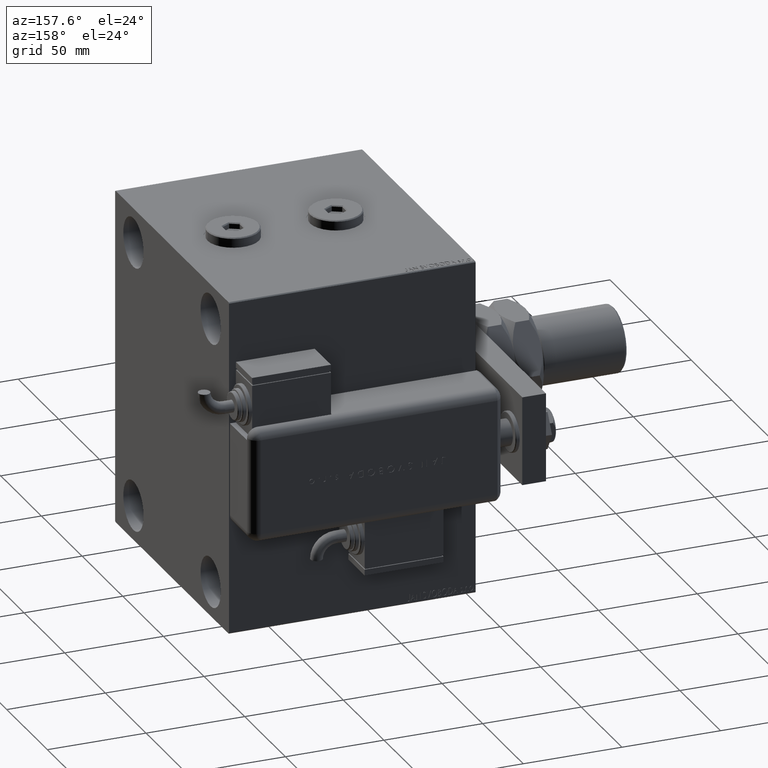
[diagram: clean part render]
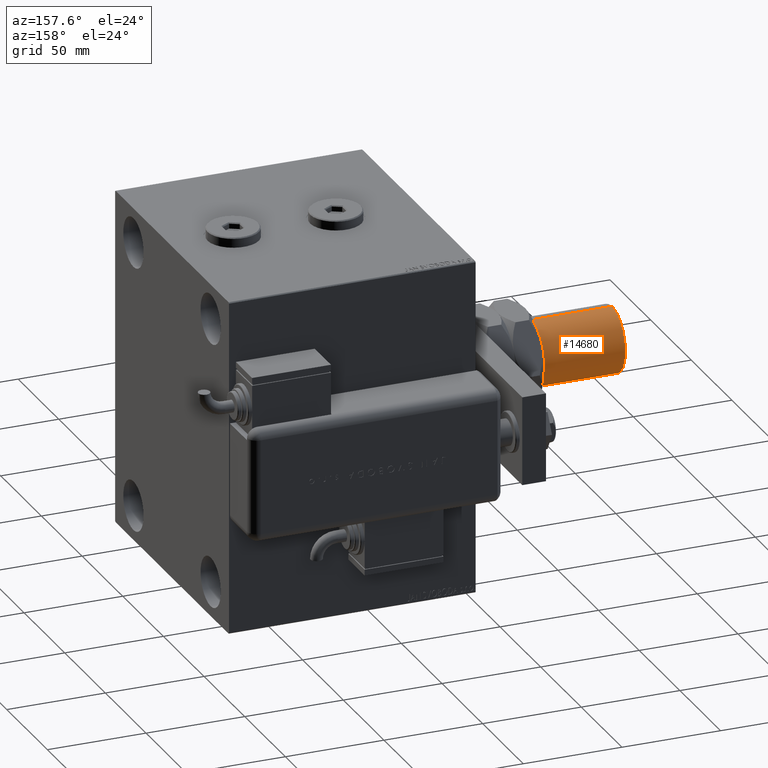
[diagram: same view with one face highlighted and labeled with its STEP entity id]
A machine part, auxiliary view. The second image highlights one B-rep face of the part: STEP entity #14680.
In plain terms, the highlighted cylindrical surface (edge-blend (fillet) strip) has radius 16.5 mm, axis along (1, -0, -0).
Its self-contained STEP definition (entity closure, byte-faithful):
#6633 = ORIENTED_EDGE ( 'NONE', *, *, #23607, .T. ) ;
#7394 = CYLINDRICAL_SURFACE ( 'NONE', #38372, 16.50000000000000000 ) ;
#7930 = VECTOR ( 'NONE', #14169, 1000.000000000000000 ) ;
#9851 = DIRECTION ( 'NONE',  ( 0.000000000000000000, 0.000000000000000000, -1.000000000000000000 ) ) ;
#11825 = EDGE_CURVE ( 'NONE', #12600, #36990, #38212, .T. ) ;
#12460 = DIRECTION ( 'NONE',  ( -0.000000000000000000, -0.000000000000000000, 1.000000000000000000 ) ) ;
#12600 = VERTEX_POINT ( 'NONE', #42498 ) ;
#14001 = VERTEX_POINT ( 'NONE', #27128 ) ;
#14169 = DIRECTION ( 'NONE',  ( -0.000000000000000000, -0.000000000000000000, -1.000000000000000000 ) ) ;
#14680 = ADVANCED_FACE ( 'NONE', ( #35848 ), #7394, .T. ) ;
#17945 = ORIENTED_EDGE ( 'NONE', *, *, #28043, .F. ) ;
#18286 = CIRCLE ( 'NONE', #28388, 16.50000000000000000 ) ;
#23306 = VERTEX_POINT ( 'NONE', #51174 ) ;
#23607 = EDGE_CURVE ( 'NONE', #36990, #14001, #56801, .T. ) ;
#27128 = CARTESIAN_POINT ( 'NONE',  ( -16.50000000000000000, 0.000000000000000000, 30.99999999999998579 ) ) ;
#28043 = EDGE_CURVE ( 'NONE', #23306, #14001, #57319, .T. ) ;
#28388 = AXIS2_PLACEMENT_3D ( 'NONE', #53205, #9851, #29128 ) ;
#29128 = DIRECTION ( 'NONE',  ( 1.000000000000000000, 0.000000000000000000, 0.000000000000000000 ) ) ;
#31745 = DIRECTION ( 'NONE',  ( 1.000000000000000000, 0.000000000000000000, 0.000000000000000000 ) ) ;
#32310 = CARTESIAN_POINT ( 'NONE',  ( -16.50000000000000000, 0.000000000000000000, 73.00000000000000000 ) ) ;
#33135 = CARTESIAN_POINT ( 'NONE',  ( 16.50000000000000000, 2.020667218593133100E-15, 73.00000000000000000 ) ) ;
#35220 = DIRECTION ( 'NONE',  ( -1.000000000000000000, 0.000000000000000000, 0.000000000000000000 ) ) ;
#35848 = FACE_OUTER_BOUND ( 'NONE', #44678, .T. ) ;
#36158 = CARTESIAN_POINT ( 'NONE',  ( 0.000000000000000000, 0.000000000000000000, 73.00000000000000000 ) ) ;
#36990 = VERTEX_POINT ( 'NONE', #44911 ) ;
#37438 = CARTESIAN_POINT ( 'NONE',  ( 0.000000000000000000, 0.000000000000000000, 30.99999999999998579 ) ) ;
#38006 = DIRECTION ( 'NONE',  ( -0.000000000000000000, -0.000000000000000000, -1.000000000000000000 ) ) ;
#38212 = LINE ( 'NONE', #33135, #7930 ) ;
#38372 = AXIS2_PLACEMENT_3D ( 'NONE', #36158, #59277, #35220 ) ;
#42498 = CARTESIAN_POINT ( 'NONE',  ( 16.50000000000000000, 2.020667218593133100E-15, 72.00000000000000000 ) ) ;
#43561 = EDGE_CURVE ( 'NONE', #23306, #12600, #18286, .T. ) ;
#44678 = EDGE_LOOP ( 'NONE', ( #51820, #48049, #6633, #17945 ) ) ;
#44911 = CARTESIAN_POINT ( 'NONE',  ( 16.50000000000000000, 2.020667218593133100E-15, 30.99999999999998579 ) ) ;
#48049 = ORIENTED_EDGE ( 'NONE', *, *, #11825, .T. ) ;
#51174 = CARTESIAN_POINT ( 'NONE',  ( -16.50000000000000000, 0.000000000000000000, 72.00000000000000000 ) ) ;
#51820 = ORIENTED_EDGE ( 'NONE', *, *, #43561, .T. ) ;
#53205 = CARTESIAN_POINT ( 'NONE',  ( 0.000000000000000000, 0.000000000000000000, 72.00000000000000000 ) ) ;
#56801 = CIRCLE ( 'NONE', #57797, 16.50000000000000000 ) ;
#57319 = LINE ( 'NONE', #32310, #62232 ) ;
#57797 = AXIS2_PLACEMENT_3D ( 'NONE', #37438, #12460, #31745 ) ;
#59277 = DIRECTION ( 'NONE',  ( -0.000000000000000000, -0.000000000000000000, -1.000000000000000000 ) ) ;
#62232 = VECTOR ( 'NONE', #38006, 1000.000000000000000 ) ;